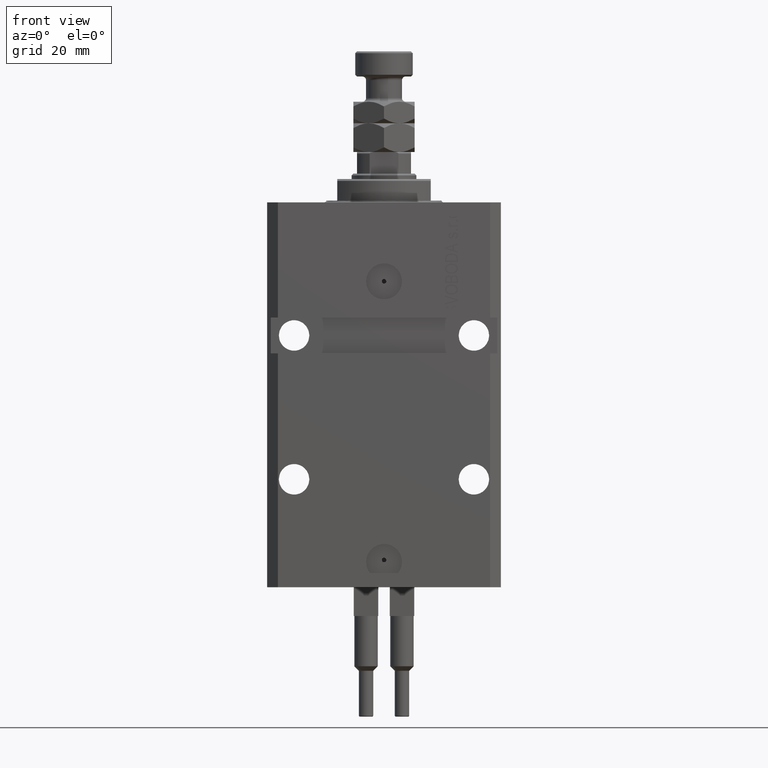
[diagram: clean part render]
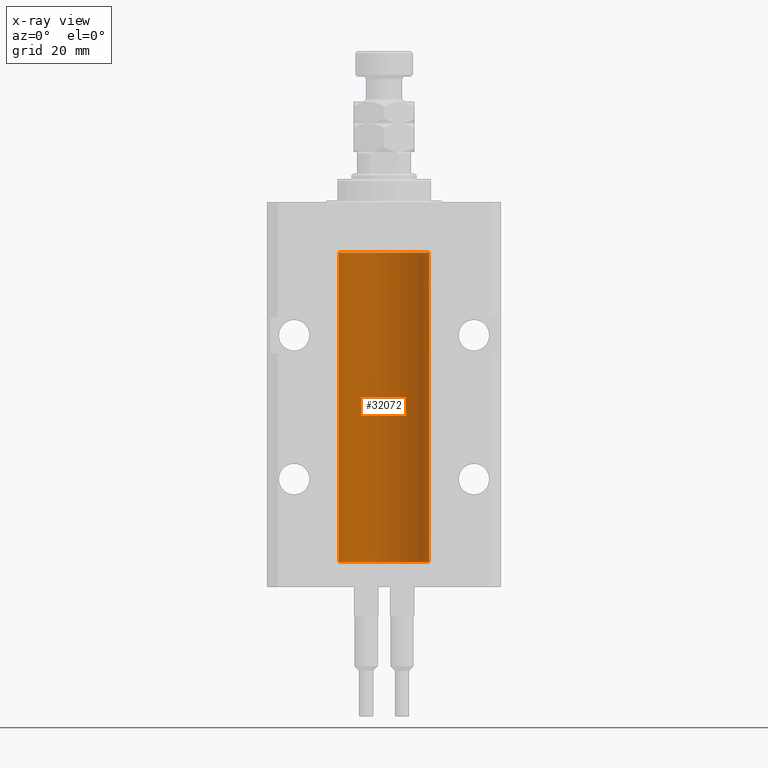
[diagram: x-ray — body ghosted, one internal face saturated and labeled with its STEP entity id]
A machine part, front view, then the same camera in x-ray: the body is ghosted and one INTERNAL B-rep face — a face not visible from any outside direction — is saturated and labeled: STEP entity #32072.
In plain terms, the highlighted cylindrical surface (partial cylindrical patch) has radius 12.5 mm, axis along (0, 0, 1).
Its self-contained STEP definition (entity closure, byte-faithful):
#102 = LINE ( 'NONE', #42010, #19710 ) ;
#242 = DIRECTION ( 'NONE',  ( -0.000000000000000000, -0.000000000000000000, 1.000000000000000000 ) ) ;
#278 = ORIENTED_EDGE ( 'NONE', *, *, #15936, .T. ) ;
#902 = B_SPLINE_CURVE_WITH_KNOTS ( 'NONE', 3,
 ( #10525, #25287, #13837, #40746, #2656, #37947, #14582, #22205 ),
 .UNSPECIFIED., .F., .F.,
 ( 4, 2, 2, 4 ),
 ( 1.784246692340212412E-18, 0.0002443481056285665750, 0.0004886962112571313068, 0.0009773924225142606621 ),
 .UNSPECIFIED. ) ;
#1558 = CARTESIAN_POINT ( 'NONE',  ( 0.000000000000000000, 0.000000000000000000, -100.0999999999999943 ) ) ;
#1825 = CARTESIAN_POINT ( 'NONE',  ( 12.50000000000017941, 3.868073565084946818E-13, -21.37499999999641176 ) ) ;
#1986 = EDGE_CURVE ( 'NONE', #21207, #38984, #38341, .T. ) ;
#2297 = DIRECTION ( 'NONE',  ( -0.000000000000000000, -0.000000000000000000, 1.000000000000000000 ) ) ;
#2316 = CARTESIAN_POINT ( 'NONE',  ( 12.49631206032075958, 0.3252904079142808214, -21.44139700214925526 ) ) ;
#2505 = VERTEX_POINT ( 'NONE', #5198 ) ;
#2631 = ORIENTED_EDGE ( 'NONE', *, *, #43739, .F. ) ;
#2656 = CARTESIAN_POINT ( 'NONE',  ( 12.49421963472024721, 0.3844519291903572555, -95.49947303647047647 ) ) ;
#3234 = CARTESIAN_POINT ( 'NONE',  ( 0.000000000000000000, 0.000000000000000000, -100.0999999999999943 ) ) ;
#3490 = ORIENTED_EDGE ( 'NONE', *, *, #15036, .T. ) ;
#3607 = VERTEX_POINT ( 'NONE', #47276 ) ;
#4367 = VECTOR ( 'NONE', #35920, 1000.000000000000000 ) ;
#4383 = CARTESIAN_POINT ( 'NONE',  ( 12.49631206032076136, 0.3252904079142934779, -94.44139700214928723 ) ) ;
#4450 = CIRCLE ( 'NONE', #23935, 12.50000000000000000 ) ;
#5198 = CARTESIAN_POINT ( 'NONE',  ( 12.50000000000000000, -1.836039810331332019E-15, -95.62500000000000000 ) ) ;
#5386 = CARTESIAN_POINT ( 'NONE',  ( 12.48520578595314845, 0.6087855079133684955, -21.83656717509346024 ) ) ;
#5946 = AXIS2_PLACEMENT_3D ( 'NONE', #1558, #2297, #17046 ) ;
#6110 = CYLINDRICAL_SURFACE ( 'NONE', #5946, 12.50000000000000000 ) ;
#7726 = DIRECTION ( 'NONE',  ( -0.000000000000000000, -0.000000000000000000, 1.000000000000000000 ) ) ;
#8758 = ORIENTED_EDGE ( 'NONE', *, *, #10565, .T. ) ;
#9235 = CARTESIAN_POINT ( 'NONE',  ( 12.48436522214885969, 0.6250000000001448841, -22.16312747540307271 ) ) ;
#9494 = CARTESIAN_POINT ( 'NONE',  ( 12.50000000000000000, -1.470318446642941360E-15, -22.62500000000000000 ) ) ;
#10525 = CARTESIAN_POINT ( 'NONE',  ( 12.50000000000000000, -1.836039810331332019E-15, -95.62500000000000000 ) ) ;
#10565 = EDGE_CURVE ( 'NONE', #20601, #38436, #19730, .T. ) ;
#10749 = EDGE_CURVE ( 'NONE', #48640, #2505, #41132, .T. ) ;
#13485 = FACE_OUTER_BOUND ( 'NONE', #37154, .T. ) ;
#13585 = B_SPLINE_CURVE_WITH_KNOTS ( 'NONE', 3,
 ( #9494, #17108, #31842, #17358, #20411, #32858, #9235, #36418 ),
 .UNSPECIFIED., .F., .F.,
 ( 4, 2, 2, 4 ),
 ( 2.576359803311334014E-18, 0.0002443481056285645150, 0.0004886962112571264279, 0.0009773924225142506875 ),
 .UNSPECIFIED. ) ;
#13837 = CARTESIAN_POINT ( 'NONE',  ( 12.49915742890631876, 0.1636982395582385896, -95.60872397847028026 ) ) ;
#14582 = CARTESIAN_POINT ( 'NONE',  ( 12.48436522214885969, 0.6250000000001505462, -95.16312747540308692 ) ) ;
#15036 = EDGE_CURVE ( 'NONE', #2505, #24556, #902, .T. ) ;
#15563 = CARTESIAN_POINT ( 'NONE',  ( 12.48436522214846711, 0.6250000000078848039, -94.99999999999923261 ) ) ;
#15936 = EDGE_CURVE ( 'NONE', #3607, #20601, #13585, .T. ) ;
#16313 = CARTESIAN_POINT ( 'NONE',  ( 12.48520578595314845, 0.6087855079133740466, -94.83656717509346379 ) ) ;
#16745 = CIRCLE ( 'NONE', #45102, 12.50000000000000000 ) ;
#17046 = DIRECTION ( 'NONE',  ( 1.000000000000000000, 0.000000000000000000, 0.000000000000000000 ) ) ;
#17108 = CARTESIAN_POINT ( 'NONE',  ( 12.49999999999999822, 0.08262306818362555316, -22.62499999999997513 ) ) ;
#17221 = VECTOR ( 'NONE', #242, 1000.000000000000000 ) ;
#17311 = CARTESIAN_POINT ( 'NONE',  ( 12.49012055744648997, 0.5002956126655976332, -21.61641710202404454 ) ) ;
#17358 = CARTESIAN_POINT ( 'NONE',  ( 12.49625698805480667, 0.3151108292486967666, -22.54593695688170385 ) ) ;
#17743 = EDGE_CURVE ( 'NONE', #38436, #25717, #38715, .T. ) ;
#18721 = DIRECTION ( 'NONE',  ( 1.000000000000000000, 0.000000000000000000, 0.000000000000000000 ) ) ;
#18872 = CARTESIAN_POINT ( 'NONE',  ( -12.50000000000000000, 1.530808498934191521E-15, -13.99999999999999822 ) ) ;
#19122 = ORIENTED_EDGE ( 'NONE', *, *, #17743, .T. ) ;
#19198 = ORIENTED_EDGE ( 'NONE', *, *, #26158, .T. ) ;
#19378 = CARTESIAN_POINT ( 'NONE',  ( 12.50000000000000000, 0.000000000000000000, -100.0999999999999943 ) ) ;
#19627 = CARTESIAN_POINT ( 'NONE',  ( 12.48810305280568222, 0.5461368461738485003, -94.68525466142676805 ) ) ;
#19710 = VECTOR ( 'NONE', #7726, 1000.000000000000000 ) ;
#19730 = B_SPLINE_CURVE_WITH_KNOTS ( 'NONE', 3,
 ( #48279, #25434, #5386, #48026, #17311, #2316, #36368, #1825 ),
 .UNSPECIFIED., .F., .F.,
 ( 4, 2, 2, 4 ),
 ( 0.0009773924225142506875, 0.001221629287363794770, 0.001465866152213338852, 0.001954339881912434389 ),
 .UNSPECIFIED. ) ;
#19791 = DIRECTION ( 'NONE',  ( -0.000000000000000000, -0.000000000000000000, 1.000000000000000000 ) ) ;
#19897 = DIRECTION ( 'NONE',  ( 1.000000000000000000, 0.000000000000000000, 0.000000000000000000 ) ) ;
#20411 = CARTESIAN_POINT ( 'NONE',  ( 12.49421963472024366, 0.3844519291903583103, -22.49947303647044805 ) ) ;
#20601 = VERTEX_POINT ( 'NONE', #30331 ) ;
#21207 = VERTEX_POINT ( 'NONE', #50168 ) ;
#22205 = CARTESIAN_POINT ( 'NONE',  ( 12.48436522214846711, 0.6250000000078848039, -94.99999999999923261 ) ) ;
#23698 = CARTESIAN_POINT ( 'NONE',  ( 12.49012055744648997, 0.5002956126656082914, -94.61641710202405875 ) ) ;
#23935 = AXIS2_PLACEMENT_3D ( 'NONE', #28286, #28032, #19897 ) ;
#24556 = VERTEX_POINT ( 'NONE', #43679 ) ;
#25287 = CARTESIAN_POINT ( 'NONE',  ( 12.49999999999999822, 0.08262306818362624705, -95.62499999999998579 ) ) ;
#25333 = CARTESIAN_POINT ( 'NONE',  ( 12.50000000000000000, 0.000000000000000000, -13.99999999999999822 ) ) ;
#25434 = CARTESIAN_POINT ( 'NONE',  ( 12.48436522214888100, 0.6249999999996762590, -21.91847339462350774 ) ) ;
#25717 = VERTEX_POINT ( 'NONE', #25333 ) ;
#25805 = ORIENTED_EDGE ( 'NONE', *, *, #36543, .T. ) ;
#26158 = EDGE_CURVE ( 'NONE', #24556, #42881, #40712, .T. ) ;
#27171 = CARTESIAN_POINT ( 'NONE',  ( -12.50000000000000000, 1.530808498934191521E-15, -100.0999999999999943 ) ) ;
#28032 = DIRECTION ( 'NONE',  ( 0.000000000000000000, 0.000000000000000000, 1.000000000000000000 ) ) ;
#28286 = CARTESIAN_POINT ( 'NONE',  ( 0.000000000000000000, 0.000000000000000000, -13.99999999999999822 ) ) ;
#28792 = CARTESIAN_POINT ( 'NONE',  ( 12.50000000000017941, 3.868073689162038701E-13, -94.37499999999640465 ) ) ;
#30152 = DIRECTION ( 'NONE',  ( 0.000000000000000000, 0.000000000000000000, 1.000000000000000000 ) ) ;
#30331 = CARTESIAN_POINT ( 'NONE',  ( 12.48436522214846889, 0.6250000000078781426, -21.99999999999923261 ) ) ;
#31561 = CARTESIAN_POINT ( 'NONE',  ( 12.48436522214888100, 0.6249999999996834754, -94.91847339462351840 ) ) ;
#31776 = EDGE_CURVE ( 'NONE', #42881, #3607, #102, .T. ) ;
#31811 = CARTESIAN_POINT ( 'NONE',  ( 12.49999999999999822, 0.1631389616600901760, -94.37500000000024158 ) ) ;
#31842 = CARTESIAN_POINT ( 'NONE',  ( 12.49915742890631876, 0.1636982395582437522, -22.60872397847025539 ) ) ;
#32072 = ADVANCED_FACE ( 'NONE', ( #13485 ), #6110, .F. ) ;
#32858 = CARTESIAN_POINT ( 'NONE',  ( 12.48809900631782099, 0.5573988467445639694, -22.32640147935474317 ) ) ;
#34800 = CARTESIAN_POINT ( 'NONE',  ( 12.50000000000000000, 0.000000000000000000, -100.0999999999999943 ) ) ;
#35920 = DIRECTION ( 'NONE',  ( -0.000000000000000000, -0.000000000000000000, 1.000000000000000000 ) ) ;
#36368 = CARTESIAN_POINT ( 'NONE',  ( 12.49999999999999112, 0.1631389616600879555, -21.37500000000019185 ) ) ;
#36418 = CARTESIAN_POINT ( 'NONE',  ( 12.48436522214846889, 0.6250000000078781426, -21.99999999999923261 ) ) ;
#36543 = EDGE_CURVE ( 'NONE', #25717, #38984, #4450, .T. ) ;
#37154 = EDGE_LOOP ( 'NONE', ( #43522, #2631, #47985, #3490, #19198, #39458, #278, #8758, #19122, #25805 ) ) ;
#37947 = CARTESIAN_POINT ( 'NONE',  ( 12.48809900631782099, 0.5573988467445673001, -95.32640147935475738 ) ) ;
#38341 = LINE ( 'NONE', #27171, #44584 ) ;
#38436 = VERTEX_POINT ( 'NONE', #49432 ) ;
#38715 = LINE ( 'NONE', #42761, #4367 ) ;
#38984 = VERTEX_POINT ( 'NONE', #18872 ) ;
#39458 = ORIENTED_EDGE ( 'NONE', *, *, #31776, .T. ) ;
#40712 = B_SPLINE_CURVE_WITH_KNOTS ( 'NONE', 3,
 ( #15563, #31561, #16313, #19627, #23698, #4383, #31811, #47028 ),
 .UNSPECIFIED., .F., .F.,
 ( 4, 2, 2, 4 ),
 ( 0.0009773924225142606621, 0.001221629287363811033, 0.001465866152213361404, 0.001954339881912461711 ),
 .UNSPECIFIED. ) ;
#40746 = CARTESIAN_POINT ( 'NONE',  ( 12.49625698805481022, 0.3151108292486944906, -95.54593695688171806 ) ) ;
#41132 = LINE ( 'NONE', #34800, #17221 ) ;
#42010 = CARTESIAN_POINT ( 'NONE',  ( 12.50000000000000000, 0.000000000000000000, -100.0999999999999943 ) ) ;
#42761 = CARTESIAN_POINT ( 'NONE',  ( 12.50000000000000000, 0.000000000000000000, -100.0999999999999943 ) ) ;
#42881 = VERTEX_POINT ( 'NONE', #28792 ) ;
#43522 = ORIENTED_EDGE ( 'NONE', *, *, #1986, .F. ) ;
#43679 = CARTESIAN_POINT ( 'NONE',  ( 12.48436522214846711, 0.6250000000078848039, -94.99999999999923261 ) ) ;
#43739 = EDGE_CURVE ( 'NONE', #48640, #21207, #16745, .T. ) ;
#44584 = VECTOR ( 'NONE', #19791, 1000.000000000000000 ) ;
#45102 = AXIS2_PLACEMENT_3D ( 'NONE', #3234, #30152, #18721 ) ;
#47028 = CARTESIAN_POINT ( 'NONE',  ( 12.50000000000017941, 3.868073689162038701E-13, -94.37499999999640465 ) ) ;
#47276 = CARTESIAN_POINT ( 'NONE',  ( 12.50000000000000000, -1.470318446642941360E-15, -22.62500000000000000 ) ) ;
#47985 = ORIENTED_EDGE ( 'NONE', *, *, #10749, .T. ) ;
#48026 = CARTESIAN_POINT ( 'NONE',  ( 12.48810305280568222, 0.5461368461738448365, -21.68525466142676805 ) ) ;
#48279 = CARTESIAN_POINT ( 'NONE',  ( 12.48436522214846889, 0.6250000000078781426, -21.99999999999923261 ) ) ;
#48640 = VERTEX_POINT ( 'NONE', #19378 ) ;
#49432 = CARTESIAN_POINT ( 'NONE',  ( 12.50000000000017941, 3.868073565084946818E-13, -21.37499999999641176 ) ) ;
#50168 = CARTESIAN_POINT ( 'NONE',  ( -12.50000000000000000, 1.530808498934191521E-15, -100.0999999999999943 ) ) ;